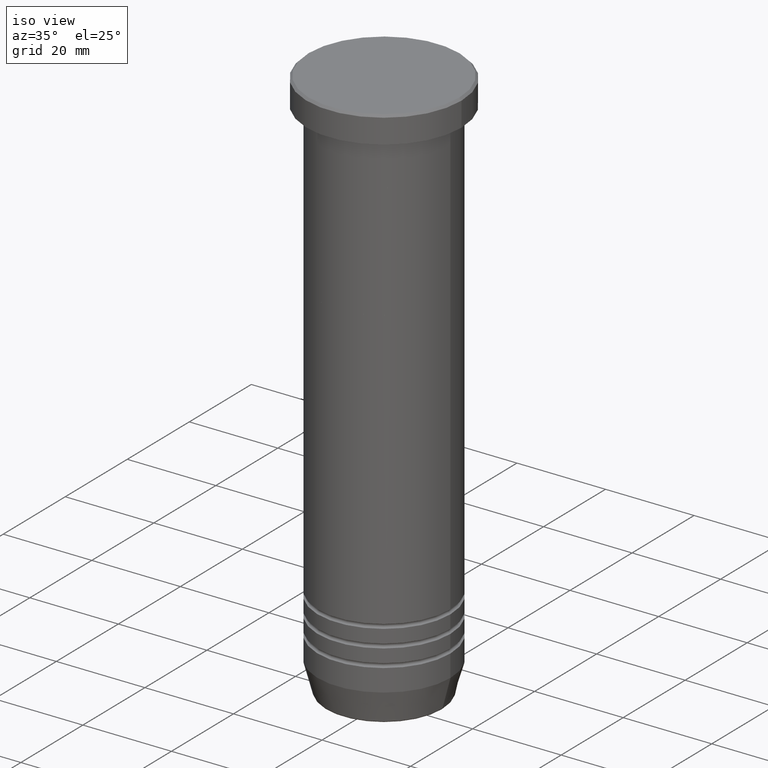
[diagram: clean part render]
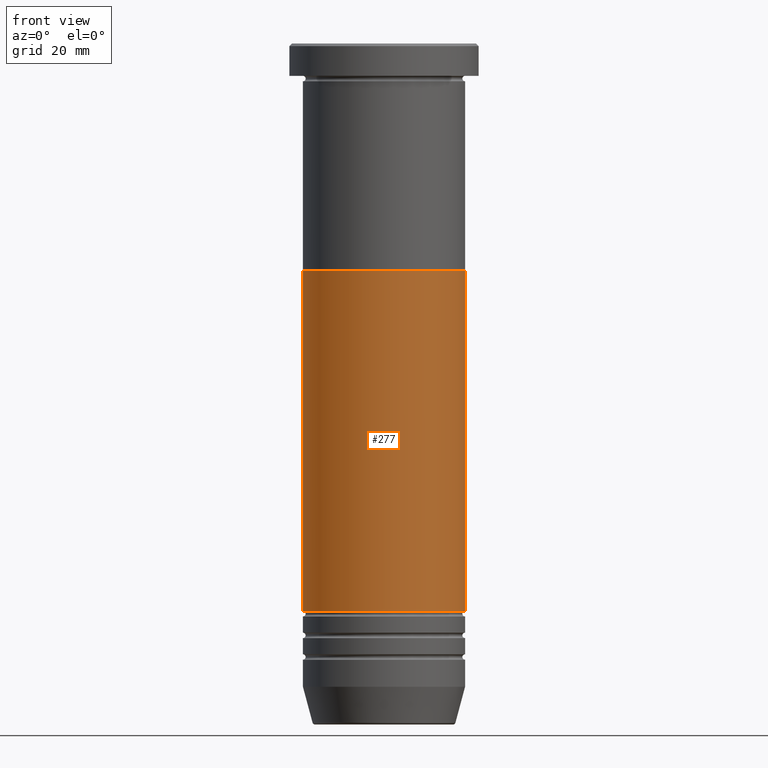
[diagram: tour spotlight — one face highlighted and labeled with its STEP entity id]
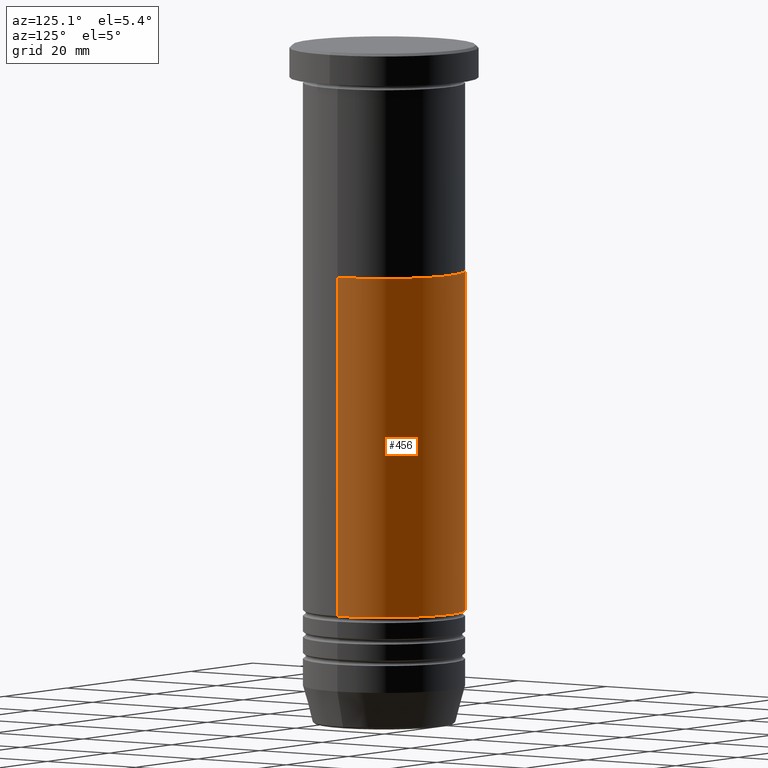
[diagram: tour spotlight — one face highlighted and labeled with its STEP entity id]
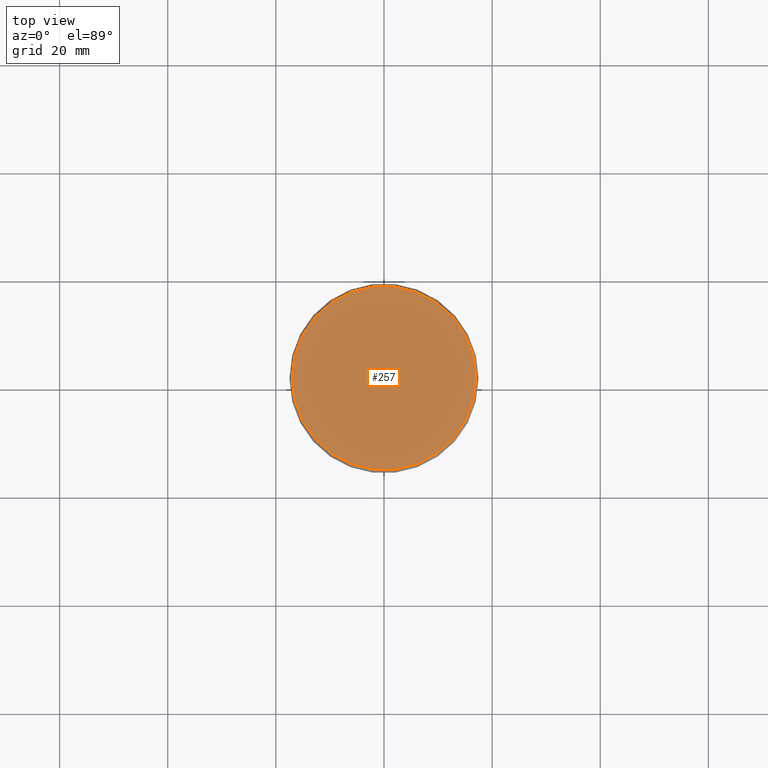
[diagram: tour spotlight — one face highlighted and labeled with its STEP entity id]
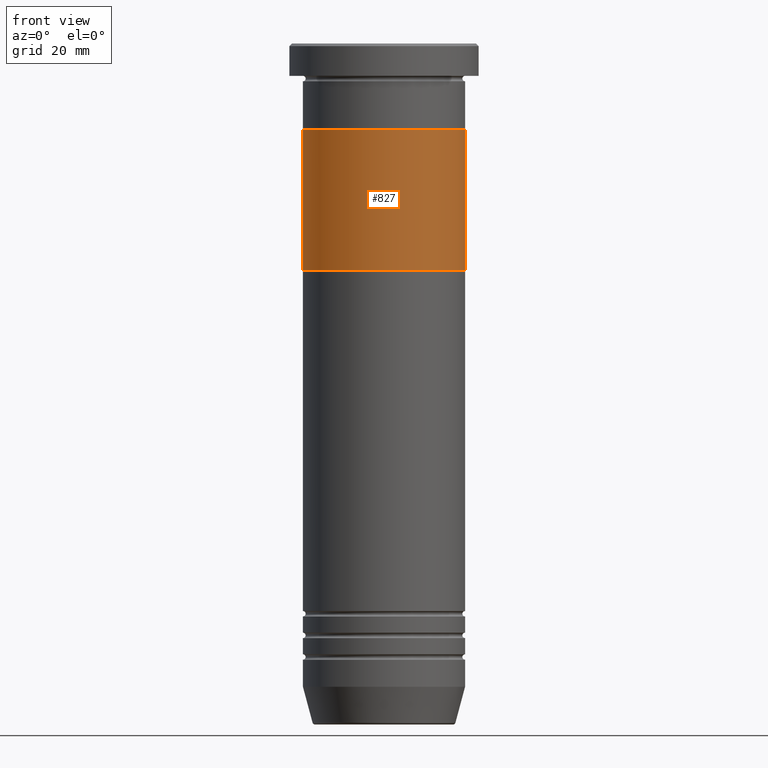
[diagram: tour spotlight — one face highlighted and labeled with its STEP entity id]
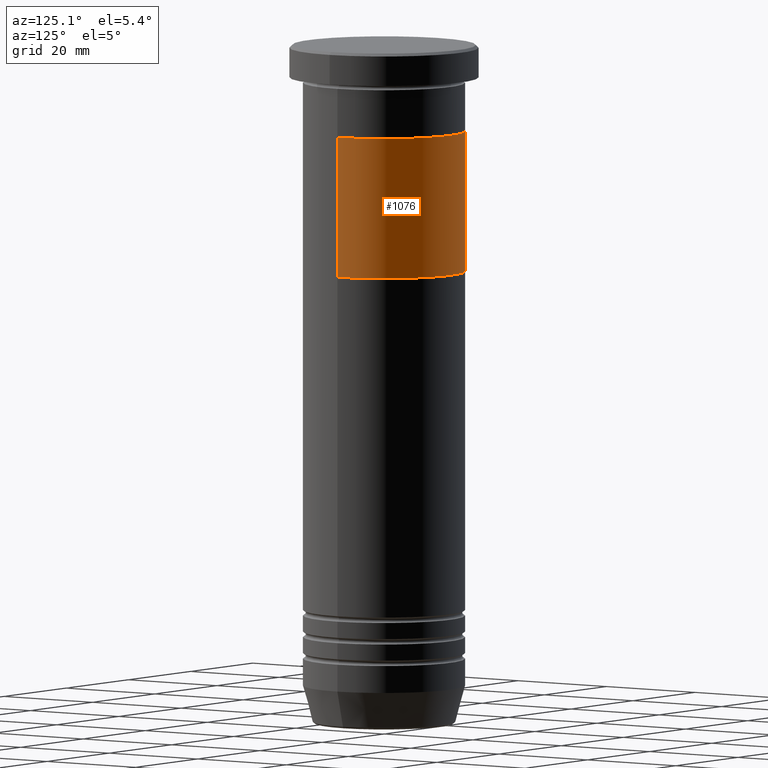
[diagram: tour spotlight — one face highlighted and labeled with its STEP entity id]
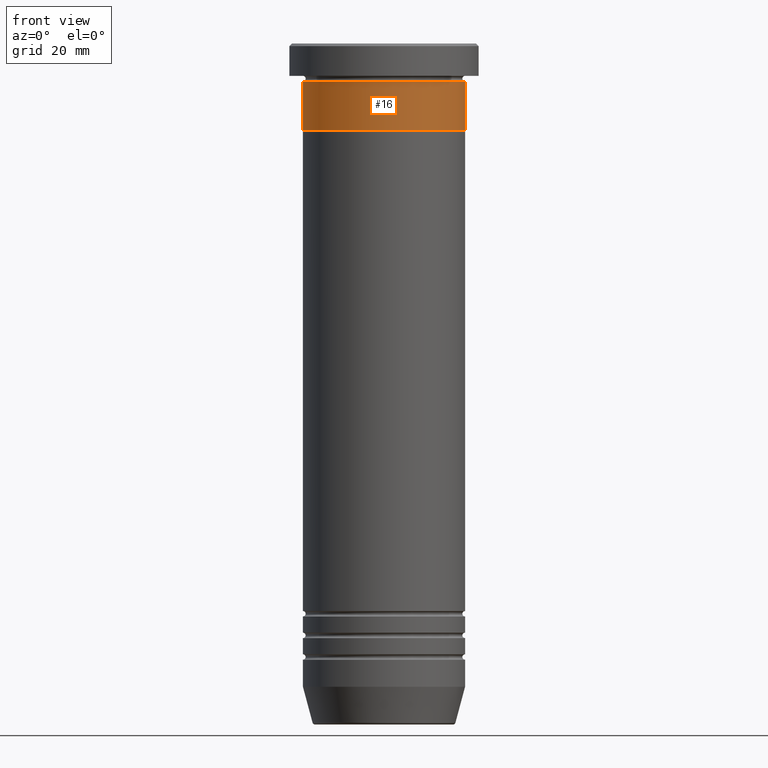
[diagram: tour spotlight — one face highlighted and labeled with its STEP entity id]
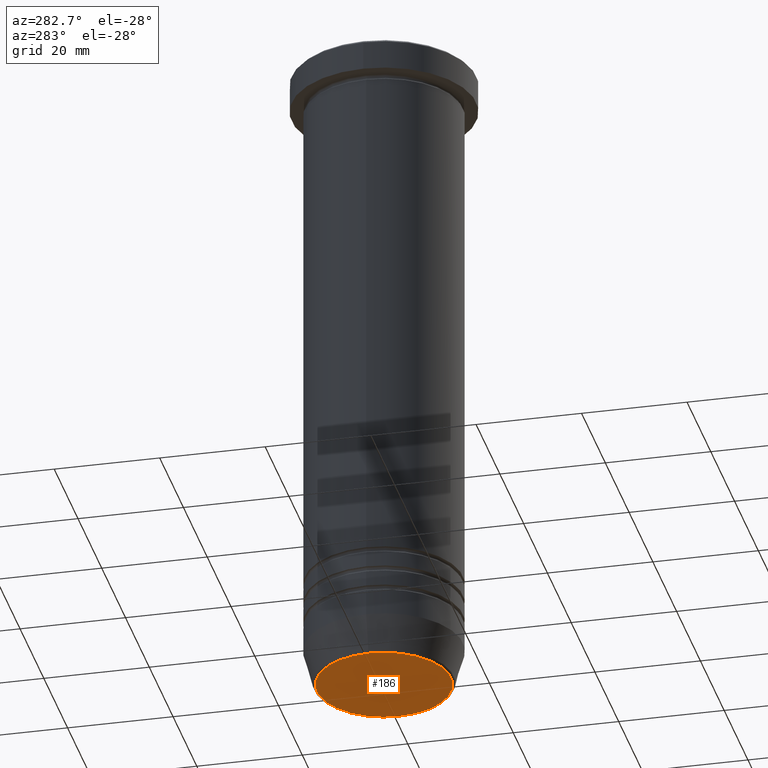
[diagram: tour spotlight — one face highlighted and labeled with its STEP entity id]
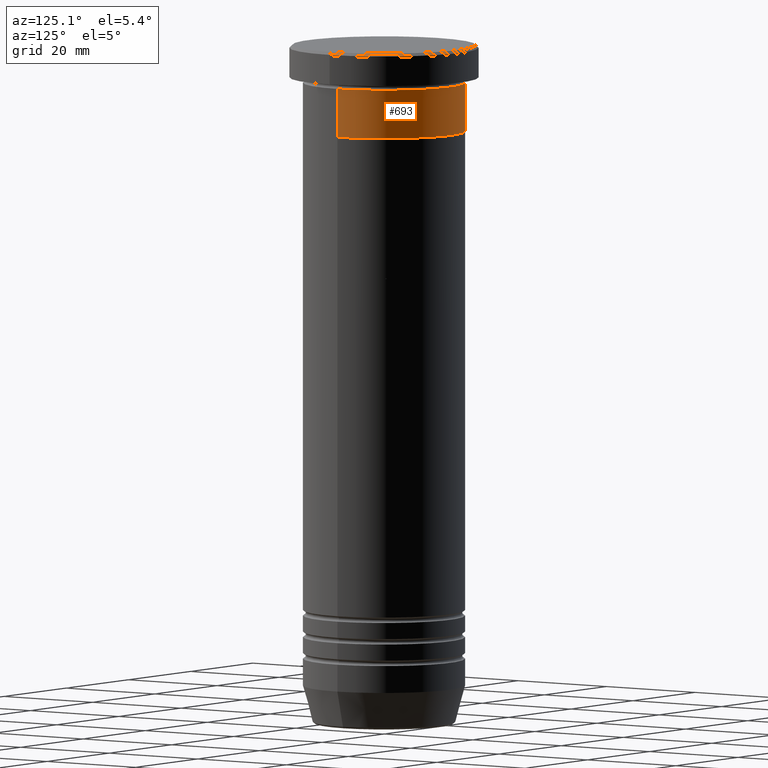
[diagram: tour spotlight — one face highlighted and labeled with its STEP entity id]
A machine part: a face-by-face anatomy tour. The part has 43 B-rep faces; the first image is the clean iso view, then the 8 largest visible faces are spotlighted one at a time (largest first), each with its STEP entity span.

Face 1 — front view, entity #277. In plain terms, the highlighted cylindrical surface (partial cylindrical patch) has radius 15 mm, axis along (-0, -0, 1).
Definition (entity closure, byte-faithful):
#32 = LINE ( 'NONE', #390, #817 ) ;
#91 = DIRECTION ( 'NONE',  ( 1.000000000000000000, 0.000000000000000000, 0.000000000000000000 ) ) ;
#101 = FACE_OUTER_BOUND ( 'NONE', #959, .T. ) ;
#114 = CYLINDRICAL_SURFACE ( 'NONE', #731, 14.99999999999999645 ) ;
#190 = ORIENTED_EDGE ( 'NONE', *, *, #1083, .T. ) ;
#222 = EDGE_CURVE ( 'NONE', #357, #1000, #997, .T. ) ;
#229 = AXIS2_PLACEMENT_3D ( 'NONE', #952, #776, #765 ) ;
#237 = CARTESIAN_POINT ( 'NONE',  ( -14.99999999999999112, 1.836970198721028800E-15, -105.0000000000000142 ) ) ;
#256 = CARTESIAN_POINT ( 'NONE',  ( 15.00000000000000000, 0.000000000000000000, -41.99999999999999289 ) ) ;
#277 = ADVANCED_FACE ( 'NONE', ( #101 ), #114, .T. ) ;
#286 = VECTOR ( 'NONE', #951, 1000.000000000000000 ) ;
#289 = ORIENTED_EDGE ( 'NONE', *, *, #523, .F. ) ;
#357 = VERTEX_POINT ( 'NONE', #851 ) ;
#390 = CARTESIAN_POINT ( 'NONE',  ( 14.99999999999999645, 0.000000000000000000, 0.000000000000000000 ) ) ;
#523 = EDGE_CURVE ( 'NONE', #771, #357, #769, .T. ) ;
#548 = ORIENTED_EDGE ( 'NONE', *, *, #668, .T. ) ;
#633 = DIRECTION ( 'NONE',  ( -0.000000000000000000, -0.000000000000000000, 1.000000000000000000 ) ) ;
#668 = EDGE_CURVE ( 'NONE', #789, #1000, #32, .T. ) ;
#677 = CARTESIAN_POINT ( 'NONE',  ( -14.99999999999999645, 1.836970198721029194E-15, 0.000000000000000000 ) ) ;
#720 = CIRCLE ( 'NONE', #1061, 14.99999999999999112 ) ;
#731 = AXIS2_PLACEMENT_3D ( 'NONE', #820, #633, #91 ) ;
#735 = DIRECTION ( 'NONE',  ( -0.000000000000000000, -0.000000000000000000, 1.000000000000000000 ) ) ;
#765 = DIRECTION ( 'NONE',  ( 1.000000000000000000, 0.000000000000000000, 0.000000000000000000 ) ) ;
#769 = LINE ( 'NONE', #677, #286 ) ;
#771 = VERTEX_POINT ( 'NONE', #237 ) ;
#776 = DIRECTION ( 'NONE',  ( -0.000000000000000000, -0.000000000000000000, 1.000000000000000000 ) ) ;
#789 = VERTEX_POINT ( 'NONE', #935 ) ;
#798 = CARTESIAN_POINT ( 'NONE',  ( 0.000000000000000000, 0.000000000000000000, -105.0000000000000142 ) ) ;
#817 = VECTOR ( 'NONE', #1087, 1000.000000000000000 ) ;
#820 = CARTESIAN_POINT ( 'NONE',  ( 0.000000000000000000, 0.000000000000000000, 0.000000000000000000 ) ) ;
#851 = CARTESIAN_POINT ( 'NONE',  ( -15.00000000000000000, 1.836970198721029589E-15, -41.99999999999999289 ) ) ;
#935 = CARTESIAN_POINT ( 'NONE',  ( 14.99999999999999112, 0.000000000000000000, -105.0000000000000142 ) ) ;
#951 = DIRECTION ( 'NONE',  ( -0.000000000000000000, -0.000000000000000000, 1.000000000000000000 ) ) ;
#952 = CARTESIAN_POINT ( 'NONE',  ( 0.000000000000000000, 0.000000000000000000, -41.99999999999999289 ) ) ;
#959 = EDGE_LOOP ( 'NONE', ( #289, #190, #548, #1044 ) ) ;
#997 = CIRCLE ( 'NONE', #229, 15.00000000000000000 ) ;
#1000 = VERTEX_POINT ( 'NONE', #256 ) ;
#1044 = ORIENTED_EDGE ( 'NONE', *, *, #222, .F. ) ;
#1061 = AXIS2_PLACEMENT_3D ( 'NONE', #798, #735, #1099 ) ;
#1083 = EDGE_CURVE ( 'NONE', #771, #789, #720, .T. ) ;
#1087 = DIRECTION ( 'NONE',  ( -0.000000000000000000, -0.000000000000000000, 1.000000000000000000 ) ) ;
#1099 = DIRECTION ( 'NONE',  ( 1.000000000000000000, 0.000000000000000000, 0.000000000000000000 ) ) ;

Face 2 — auxiliary view, entity #456. In plain terms, the highlighted cylindrical surface (partial cylindrical patch) has radius 15 mm, axis along (-0, -0, 1).
Definition (entity closure, byte-faithful):
#23 = AXIS2_PLACEMENT_3D ( 'NONE', #635, #188, #214 ) ;
#25 = ORIENTED_EDGE ( 'NONE', *, *, #706, .T. ) ;
#32 = LINE ( 'NONE', #390, #817 ) ;
#145 = DIRECTION ( 'NONE',  ( 1.000000000000000000, 0.000000000000000000, 0.000000000000000000 ) ) ;
#148 = DIRECTION ( 'NONE',  ( -0.000000000000000000, -0.000000000000000000, 1.000000000000000000 ) ) ;
#188 = DIRECTION ( 'NONE',  ( -0.000000000000000000, -0.000000000000000000, 1.000000000000000000 ) ) ;
#214 = DIRECTION ( 'NONE',  ( 1.000000000000000000, 0.000000000000000000, 0.000000000000000000 ) ) ;
#237 = CARTESIAN_POINT ( 'NONE',  ( -14.99999999999999112, 1.836970198721028800E-15, -105.0000000000000142 ) ) ;
#256 = CARTESIAN_POINT ( 'NONE',  ( 15.00000000000000000, 0.000000000000000000, -41.99999999999999289 ) ) ;
#286 = VECTOR ( 'NONE', #951, 1000.000000000000000 ) ;
#357 = VERTEX_POINT ( 'NONE', #851 ) ;
#375 = EDGE_LOOP ( 'NONE', ( #25, #1077, #806, #480 ) ) ;
#390 = CARTESIAN_POINT ( 'NONE',  ( 14.99999999999999645, 0.000000000000000000, 0.000000000000000000 ) ) ;
#456 = ADVANCED_FACE ( 'NONE', ( #755 ), #482, .T. ) ;
#480 = ORIENTED_EDGE ( 'NONE', *, *, #668, .F. ) ;
#482 = CYLINDRICAL_SURFACE ( 'NONE', #732, 14.99999999999999645 ) ;
#523 = EDGE_CURVE ( 'NONE', #771, #357, #769, .T. ) ;
#524 = CIRCLE ( 'NONE', #23, 15.00000000000000000 ) ;
#574 = CARTESIAN_POINT ( 'NONE',  ( 0.000000000000000000, 0.000000000000000000, -105.0000000000000142 ) ) ;
#635 = CARTESIAN_POINT ( 'NONE',  ( 0.000000000000000000, 0.000000000000000000, -41.99999999999999289 ) ) ;
#668 = EDGE_CURVE ( 'NONE', #789, #1000, #32, .T. ) ;
#670 = EDGE_CURVE ( 'NONE', #1000, #357, #524, .T. ) ;
#677 = CARTESIAN_POINT ( 'NONE',  ( -14.99999999999999645, 1.836970198721029194E-15, 0.000000000000000000 ) ) ;
#706 = EDGE_CURVE ( 'NONE', #789, #771, #910, .T. ) ;
#732 = AXIS2_PLACEMENT_3D ( 'NONE', #845, #148, #832 ) ;
#755 = FACE_OUTER_BOUND ( 'NONE', #375, .T. ) ;
#760 = AXIS2_PLACEMENT_3D ( 'NONE', #574, #1121, #145 ) ;
#769 = LINE ( 'NONE', #677, #286 ) ;
#771 = VERTEX_POINT ( 'NONE', #237 ) ;
#789 = VERTEX_POINT ( 'NONE', #935 ) ;
#806 = ORIENTED_EDGE ( 'NONE', *, *, #670, .F. ) ;
#817 = VECTOR ( 'NONE', #1087, 1000.000000000000000 ) ;
#832 = DIRECTION ( 'NONE',  ( 1.000000000000000000, 0.000000000000000000, 0.000000000000000000 ) ) ;
#845 = CARTESIAN_POINT ( 'NONE',  ( 0.000000000000000000, 0.000000000000000000, 0.000000000000000000 ) ) ;
#851 = CARTESIAN_POINT ( 'NONE',  ( -15.00000000000000000, 1.836970198721029589E-15, -41.99999999999999289 ) ) ;
#910 = CIRCLE ( 'NONE', #760, 14.99999999999999112 ) ;
#935 = CARTESIAN_POINT ( 'NONE',  ( 14.99999999999999112, 0.000000000000000000, -105.0000000000000142 ) ) ;
#951 = DIRECTION ( 'NONE',  ( -0.000000000000000000, -0.000000000000000000, 1.000000000000000000 ) ) ;
#1000 = VERTEX_POINT ( 'NONE', #256 ) ;
#1077 = ORIENTED_EDGE ( 'NONE', *, *, #523, .T. ) ;
#1087 = DIRECTION ( 'NONE',  ( -0.000000000000000000, -0.000000000000000000, 1.000000000000000000 ) ) ;
#1121 = DIRECTION ( 'NONE',  ( -0.000000000000000000, -0.000000000000000000, 1.000000000000000000 ) ) ;

Face 3 — top view, entity #257. In plain terms, the highlighted planar face has unit normal (0, -0, 1).
Definition (entity closure, byte-faithful):
#106 = CARTESIAN_POINT ( 'NONE',  ( 0.000000000000000000, 0.000000000000000000, 0.000000000000000000 ) ) ;
#199 = ORIENTED_EDGE ( 'NONE', *, *, #737, .T. ) ;
#218 = CARTESIAN_POINT ( 'NONE',  ( 0.000000000000000000, 0.000000000000000000, 0.000000000000000000 ) ) ;
#247 = CARTESIAN_POINT ( 'NONE',  ( 0.000000000000000000, 0.000000000000000000, 0.000000000000000000 ) ) ;
#257 = ADVANCED_FACE ( 'NONE', ( #422 ), #1034, .T. ) ;
#295 = DIRECTION ( 'NONE',  ( 1.000000000000000000, 0.000000000000000000, 0.000000000000000000 ) ) ;
#308 = VERTEX_POINT ( 'NONE', #330 ) ;
#330 = CARTESIAN_POINT ( 'NONE',  ( 17.00000000000000000, 2.112515728529184067E-15, 0.000000000000000000 ) ) ;
#422 = FACE_OUTER_BOUND ( 'NONE', #1057, .T. ) ;
#493 = DIRECTION ( 'NONE',  ( -0.000000000000000000, -0.000000000000000000, 1.000000000000000000 ) ) ;
#532 = AXIS2_PLACEMENT_3D ( 'NONE', #106, #983, #1068 ) ;
#591 = DIRECTION ( 'NONE',  ( 0.000000000000000000, -0.000000000000000000, 1.000000000000000000 ) ) ;
#601 = ORIENTED_EDGE ( 'NONE', *, *, #1104, .T. ) ;
#621 = CIRCLE ( 'NONE', #659, 17.00000000000000000 ) ;
#659 = AXIS2_PLACEMENT_3D ( 'NONE', #218, #493, #667 ) ;
#667 = DIRECTION ( 'NONE',  ( 1.000000000000000000, 0.000000000000000000, 0.000000000000000000 ) ) ;
#737 = EDGE_CURVE ( 'NONE', #308, #942, #621, .T. ) ;
#815 = CIRCLE ( 'NONE', #532, 17.00000000000000000 ) ;
#942 = VERTEX_POINT ( 'NONE', #1138 ) ;
#983 = DIRECTION ( 'NONE',  ( -0.000000000000000000, -0.000000000000000000, 1.000000000000000000 ) ) ;
#1034 = PLANE ( 'NONE',  #1094 ) ;
#1057 = EDGE_LOOP ( 'NONE', ( #601, #199 ) ) ;
#1068 = DIRECTION ( 'NONE',  ( 1.000000000000000000, 0.000000000000000000, 0.000000000000000000 ) ) ;
#1094 = AXIS2_PLACEMENT_3D ( 'NONE', #247, #591, #295 ) ;
#1104 = EDGE_CURVE ( 'NONE', #942, #308, #815, .T. ) ;
#1138 = CARTESIAN_POINT ( 'NONE',  ( -17.00000000000000000, 0.000000000000000000, 0.000000000000000000 ) ) ;

Face 4 — front view, entity #827. In plain terms, the highlighted cylindrical surface (partial cylindrical patch) has radius 15 mm, axis along (-0, -0, 1).
Definition (entity closure, byte-faithful):
#47 = CARTESIAN_POINT ( 'NONE',  ( -15.00000000000000000, 1.836970198721029194E-15, -16.00000000000000000 ) ) ;
#50 = VERTEX_POINT ( 'NONE', #116 ) ;
#54 = EDGE_CURVE ( 'NONE', #50, #1053, #923, .T. ) ;
#60 = EDGE_LOOP ( 'NONE', ( #526, #750, #730, #389 ) ) ;
#94 = CIRCLE ( 'NONE', #193, 15.00000000000000000 ) ;
#111 = EDGE_CURVE ( 'NONE', #575, #50, #1118, .T. ) ;
#116 = CARTESIAN_POINT ( 'NONE',  ( 15.00000000000000000, 0.000000000000000000, -16.00000000000000000 ) ) ;
#163 = FACE_OUTER_BOUND ( 'NONE', #60, .T. ) ;
#193 = AXIS2_PLACEMENT_3D ( 'NONE', #687, #337, #599 ) ;
#223 = CARTESIAN_POINT ( 'NONE',  ( -15.00000000000000000, 1.836970198721029194E-15, -41.99999999999999289 ) ) ;
#238 = EDGE_CURVE ( 'NONE', #575, #689, #94, .T. ) ;
#242 = DIRECTION ( 'NONE',  ( -0.000000000000000000, -0.000000000000000000, 1.000000000000000000 ) ) ;
#281 = DIRECTION ( 'NONE',  ( -1.000000000000000000, 0.000000000000000000, 0.000000000000000000 ) ) ;
#325 = VECTOR ( 'NONE', #823, 1000.000000000000000 ) ;
#337 = DIRECTION ( 'NONE',  ( 0.000000000000000000, 0.000000000000000000, -1.000000000000000000 ) ) ;
#340 = CARTESIAN_POINT ( 'NONE',  ( -15.00000000000000000, 1.836970198721029194E-15, -41.99999999999999289 ) ) ;
#389 = ORIENTED_EDGE ( 'NONE', *, *, #54, .T. ) ;
#423 = CYLINDRICAL_SURFACE ( 'NONE', #573, 15.00000000000000000 ) ;
#526 = ORIENTED_EDGE ( 'NONE', *, *, #878, .F. ) ;
#538 = DIRECTION ( 'NONE',  ( 0.000000000000000000, 0.000000000000000000, -1.000000000000000000 ) ) ;
#573 = AXIS2_PLACEMENT_3D ( 'NONE', #1127, #1008, #922 ) ;
#575 = VERTEX_POINT ( 'NONE', #976 ) ;
#577 = LINE ( 'NONE', #340, #819 ) ;
#599 = DIRECTION ( 'NONE',  ( -1.000000000000000000, 0.000000000000000000, 0.000000000000000000 ) ) ;
#687 = CARTESIAN_POINT ( 'NONE',  ( 0.000000000000000000, 0.000000000000000000, -41.99999999999999289 ) ) ;
#689 = VERTEX_POINT ( 'NONE', #223 ) ;
#730 = ORIENTED_EDGE ( 'NONE', *, *, #111, .T. ) ;
#750 = ORIENTED_EDGE ( 'NONE', *, *, #238, .F. ) ;
#819 = VECTOR ( 'NONE', #242, 1000.000000000000000 ) ;
#823 = DIRECTION ( 'NONE',  ( -0.000000000000000000, -0.000000000000000000, 1.000000000000000000 ) ) ;
#827 = ADVANCED_FACE ( 'NONE', ( #163 ), #423, .T. ) ;
#838 = CARTESIAN_POINT ( 'NONE',  ( 15.00000000000000000, 0.000000000000000000, -41.99999999999999289 ) ) ;
#878 = EDGE_CURVE ( 'NONE', #689, #1053, #577, .T. ) ;
#922 = DIRECTION ( 'NONE',  ( 1.000000000000000000, 0.000000000000000000, 0.000000000000000000 ) ) ;
#923 = CIRCLE ( 'NONE', #1137, 15.00000000000000000 ) ;
#976 = CARTESIAN_POINT ( 'NONE',  ( 15.00000000000000000, 0.000000000000000000, -41.99999999999999289 ) ) ;
#1008 = DIRECTION ( 'NONE',  ( -0.000000000000000000, -0.000000000000000000, 1.000000000000000000 ) ) ;
#1053 = VERTEX_POINT ( 'NONE', #47 ) ;
#1070 = CARTESIAN_POINT ( 'NONE',  ( 0.000000000000000000, 0.000000000000000000, -16.00000000000000000 ) ) ;
#1118 = LINE ( 'NONE', #838, #325 ) ;
#1127 = CARTESIAN_POINT ( 'NONE',  ( 0.000000000000000000, 0.000000000000000000, -41.99999999999999289 ) ) ;
#1137 = AXIS2_PLACEMENT_3D ( 'NONE', #1070, #538, #281 ) ;

Face 5 — auxiliary view, entity #1076. In plain terms, the highlighted cylindrical surface (partial cylindrical patch) has radius 15 mm, axis along (-0, -0, 1).
Definition (entity closure, byte-faithful):
#37 = DIRECTION ( 'NONE',  ( -0.000000000000000000, -0.000000000000000000, 1.000000000000000000 ) ) ;
#47 = CARTESIAN_POINT ( 'NONE',  ( -15.00000000000000000, 1.836970198721029194E-15, -16.00000000000000000 ) ) ;
#50 = VERTEX_POINT ( 'NONE', #116 ) ;
#111 = EDGE_CURVE ( 'NONE', #575, #50, #1118, .T. ) ;
#116 = CARTESIAN_POINT ( 'NONE',  ( 15.00000000000000000, 0.000000000000000000, -16.00000000000000000 ) ) ;
#175 = AXIS2_PLACEMENT_3D ( 'NONE', #814, #37, #704 ) ;
#223 = CARTESIAN_POINT ( 'NONE',  ( -15.00000000000000000, 1.836970198721029194E-15, -41.99999999999999289 ) ) ;
#234 = CARTESIAN_POINT ( 'NONE',  ( 0.000000000000000000, 0.000000000000000000, -41.99999999999999289 ) ) ;
#242 = DIRECTION ( 'NONE',  ( -0.000000000000000000, -0.000000000000000000, 1.000000000000000000 ) ) ;
#284 = EDGE_LOOP ( 'NONE', ( #521, #561, #694, #1030 ) ) ;
#297 = DIRECTION ( 'NONE',  ( -1.000000000000000000, 0.000000000000000000, 0.000000000000000000 ) ) ;
#325 = VECTOR ( 'NONE', #823, 1000.000000000000000 ) ;
#340 = CARTESIAN_POINT ( 'NONE',  ( -15.00000000000000000, 1.836970198721029194E-15, -41.99999999999999289 ) ) ;
#370 = CYLINDRICAL_SURFACE ( 'NONE', #175, 15.00000000000000000 ) ;
#437 = CIRCLE ( 'NONE', #875, 15.00000000000000000 ) ;
#516 = DIRECTION ( 'NONE',  ( 0.000000000000000000, 0.000000000000000000, -1.000000000000000000 ) ) ;
#521 = ORIENTED_EDGE ( 'NONE', *, *, #871, .F. ) ;
#561 = ORIENTED_EDGE ( 'NONE', *, *, #878, .T. ) ;
#575 = VERTEX_POINT ( 'NONE', #976 ) ;
#577 = LINE ( 'NONE', #340, #819 ) ;
#618 = FACE_OUTER_BOUND ( 'NONE', #284, .T. ) ;
#669 = EDGE_CURVE ( 'NONE', #1053, #50, #1017, .T. ) ;
#689 = VERTEX_POINT ( 'NONE', #223 ) ;
#694 = ORIENTED_EDGE ( 'NONE', *, *, #669, .T. ) ;
#704 = DIRECTION ( 'NONE',  ( 1.000000000000000000, 0.000000000000000000, 0.000000000000000000 ) ) ;
#814 = CARTESIAN_POINT ( 'NONE',  ( 0.000000000000000000, 0.000000000000000000, -41.99999999999999289 ) ) ;
#819 = VECTOR ( 'NONE', #242, 1000.000000000000000 ) ;
#823 = DIRECTION ( 'NONE',  ( -0.000000000000000000, -0.000000000000000000, 1.000000000000000000 ) ) ;
#838 = CARTESIAN_POINT ( 'NONE',  ( 15.00000000000000000, 0.000000000000000000, -41.99999999999999289 ) ) ;
#871 = EDGE_CURVE ( 'NONE', #689, #575, #437, .T. ) ;
#875 = AXIS2_PLACEMENT_3D ( 'NONE', #234, #516, #949 ) ;
#878 = EDGE_CURVE ( 'NONE', #689, #1053, #577, .T. ) ;
#949 = DIRECTION ( 'NONE',  ( -1.000000000000000000, 0.000000000000000000, 0.000000000000000000 ) ) ;
#976 = CARTESIAN_POINT ( 'NONE',  ( 15.00000000000000000, 0.000000000000000000, -41.99999999999999289 ) ) ;
#982 = CARTESIAN_POINT ( 'NONE',  ( 0.000000000000000000, 0.000000000000000000, -16.00000000000000000 ) ) ;
#1017 = CIRCLE ( 'NONE', #1095, 15.00000000000000000 ) ;
#1030 = ORIENTED_EDGE ( 'NONE', *, *, #111, .F. ) ;
#1053 = VERTEX_POINT ( 'NONE', #47 ) ;
#1076 = ADVANCED_FACE ( 'NONE', ( #618 ), #370, .T. ) ;
#1093 = DIRECTION ( 'NONE',  ( 0.000000000000000000, 0.000000000000000000, -1.000000000000000000 ) ) ;
#1095 = AXIS2_PLACEMENT_3D ( 'NONE', #982, #1093, #297 ) ;
#1118 = LINE ( 'NONE', #838, #325 ) ;

Face 6 — front view, entity #16. In plain terms, the highlighted cylindrical surface (partial cylindrical patch) has radius 15 mm, axis along (-0, -0, 1).
Definition (entity closure, byte-faithful):
#7 = CYLINDRICAL_SURFACE ( 'NONE', #249, 15.00000000000000000 ) ;
#16 = ADVANCED_FACE ( 'NONE', ( #980 ), #7, .T. ) ;
#20 = VERTEX_POINT ( 'NONE', #541 ) ;
#44 = ORIENTED_EDGE ( 'NONE', *, *, #738, .T. ) ;
#48 = DIRECTION ( 'NONE',  ( -0.000000000000000000, -0.000000000000000000, 1.000000000000000000 ) ) ;
#97 = ORIENTED_EDGE ( 'NONE', *, *, #550, .F. ) ;
#109 = CARTESIAN_POINT ( 'NONE',  ( 0.000000000000000000, 0.000000000000000000, -6.999999999999999112 ) ) ;
#120 = CIRCLE ( 'NONE', #452, 15.00000000000000000 ) ;
#157 = DIRECTION ( 'NONE',  ( -0.000000000000000000, -0.000000000000000000, 1.000000000000000000 ) ) ;
#181 = VERTEX_POINT ( 'NONE', #603 ) ;
#216 = CARTESIAN_POINT ( 'NONE',  ( -15.00000000000000000, 1.836970198721029589E-15, -16.00000000000000000 ) ) ;
#240 = ORIENTED_EDGE ( 'NONE', *, *, #719, .T. ) ;
#249 = AXIS2_PLACEMENT_3D ( 'NONE', #385, #808, #904 ) ;
#319 = CARTESIAN_POINT ( 'NONE',  ( -15.00000000000000000, 1.836970198721029589E-15, 0.000000000000000000 ) ) ;
#334 = DIRECTION ( 'NONE',  ( 1.000000000000000000, 0.000000000000000000, 0.000000000000000000 ) ) ;
#343 = VERTEX_POINT ( 'NONE', #216 ) ;
#385 = CARTESIAN_POINT ( 'NONE',  ( 0.000000000000000000, 0.000000000000000000, 0.000000000000000000 ) ) ;
#393 = DIRECTION ( 'NONE',  ( -0.000000000000000000, -0.000000000000000000, 1.000000000000000000 ) ) ;
#451 = AXIS2_PLACEMENT_3D ( 'NONE', #109, #393, #809 ) ;
#452 = AXIS2_PLACEMENT_3D ( 'NONE', #826, #48, #334 ) ;
#534 = ORIENTED_EDGE ( 'NONE', *, *, #869, .F. ) ;
#541 = CARTESIAN_POINT ( 'NONE',  ( -15.00000000000000000, 1.836970198721029589E-15, -6.999999999999999112 ) ) ;
#550 = EDGE_CURVE ( 'NONE', #20, #181, #984, .T. ) ;
#582 = LINE ( 'NONE', #839, #1065 ) ;
#603 = CARTESIAN_POINT ( 'NONE',  ( 15.00000000000000000, 0.000000000000000000, -6.999999999999999112 ) ) ;
#699 = VECTOR ( 'NONE', #157, 1000.000000000000000 ) ;
#719 = EDGE_CURVE ( 'NONE', #343, #874, #120, .T. ) ;
#738 = EDGE_CURVE ( 'NONE', #874, #181, #582, .T. ) ;
#749 = DIRECTION ( 'NONE',  ( -0.000000000000000000, -0.000000000000000000, 1.000000000000000000 ) ) ;
#808 = DIRECTION ( 'NONE',  ( -0.000000000000000000, -0.000000000000000000, 1.000000000000000000 ) ) ;
#809 = DIRECTION ( 'NONE',  ( 1.000000000000000000, 0.000000000000000000, 0.000000000000000000 ) ) ;
#826 = CARTESIAN_POINT ( 'NONE',  ( 0.000000000000000000, 0.000000000000000000, -16.00000000000000000 ) ) ;
#839 = CARTESIAN_POINT ( 'NONE',  ( 15.00000000000000000, 0.000000000000000000, 0.000000000000000000 ) ) ;
#869 = EDGE_CURVE ( 'NONE', #343, #20, #1105, .T. ) ;
#874 = VERTEX_POINT ( 'NONE', #938 ) ;
#904 = DIRECTION ( 'NONE',  ( 1.000000000000000000, 0.000000000000000000, 0.000000000000000000 ) ) ;
#938 = CARTESIAN_POINT ( 'NONE',  ( 15.00000000000000000, 0.000000000000000000, -16.00000000000000000 ) ) ;
#980 = FACE_OUTER_BOUND ( 'NONE', #1009, .T. ) ;
#984 = CIRCLE ( 'NONE', #451, 15.00000000000000000 ) ;
#1009 = EDGE_LOOP ( 'NONE', ( #534, #240, #44, #97 ) ) ;
#1065 = VECTOR ( 'NONE', #749, 1000.000000000000000 ) ;
#1105 = LINE ( 'NONE', #319, #699 ) ;

Face 7 — auxiliary view, entity #186. In plain terms, the highlighted planar face has unit normal (0, -0, 1).
Definition (entity closure, byte-faithful):
#67 = DIRECTION ( 'NONE',  ( 0.000000000000000000, 0.000000000000000000, -1.000000000000000000 ) ) ;
#68 = AXIS2_PLACEMENT_3D ( 'NONE', #567, #67, #331 ) ;
#113 = ORIENTED_EDGE ( 'NONE', *, *, #843, .T. ) ;
#144 = DIRECTION ( 'NONE',  ( 0.000000000000000000, 0.000000000000000000, -1.000000000000000000 ) ) ;
#179 = DIRECTION ( 'NONE',  ( 1.000000000000000000, 0.000000000000000000, 0.000000000000000000 ) ) ;
#186 = ADVANCED_FACE ( 'NONE', ( #960 ), #1133, .F. ) ;
#259 = CARTESIAN_POINT ( 'NONE',  ( 0.000000000000000000, 8.143901214329899974E-15, -126.0000000000000000 ) ) ;
#331 = DIRECTION ( 'NONE',  ( 1.000000000000000000, 0.000000000000000000, 0.000000000000000000 ) ) ;
#484 = DIRECTION ( 'NONE',  ( 1.000000000000000000, 0.000000000000000000, 0.000000000000000000 ) ) ;
#567 = CARTESIAN_POINT ( 'NONE',  ( 0.000000000000000000, 0.000000000000000000, -126.0000000000000000 ) ) ;
#636 = EDGE_LOOP ( 'NONE', ( #1046, #113 ) ) ;
#696 = CIRCLE ( 'NONE', #715, 12.74069215899266005 ) ;
#715 = AXIS2_PLACEMENT_3D ( 'NONE', #991, #144, #484 ) ;
#718 = CIRCLE ( 'NONE', #68, 12.74069215899266005 ) ;
#743 = CARTESIAN_POINT ( 'NONE',  ( -12.74069215899266005, 1.589857736427681429E-15, -126.0000000000000000 ) ) ;
#753 = AXIS2_PLACEMENT_3D ( 'NONE', #259, #1125, #179 ) ;
#761 = CARTESIAN_POINT ( 'NONE',  ( 12.74069215899266005, 0.000000000000000000, -126.0000000000000000 ) ) ;
#824 = VERTEX_POINT ( 'NONE', #761 ) ;
#843 = EDGE_CURVE ( 'NONE', #1120, #824, #718, .T. ) ;
#960 = FACE_OUTER_BOUND ( 'NONE', #636, .T. ) ;
#991 = CARTESIAN_POINT ( 'NONE',  ( 0.000000000000000000, 0.000000000000000000, -126.0000000000000000 ) ) ;
#1046 = ORIENTED_EDGE ( 'NONE', *, *, #1056, .T. ) ;
#1056 = EDGE_CURVE ( 'NONE', #824, #1120, #696, .T. ) ;
#1120 = VERTEX_POINT ( 'NONE', #743 ) ;
#1125 = DIRECTION ( 'NONE',  ( 0.000000000000000000, -0.000000000000000000, 1.000000000000000000 ) ) ;
#1133 = PLANE ( 'NONE',  #753 ) ;

Face 8 — auxiliary view, entity #693. In plain terms, the highlighted cylindrical surface (partial cylindrical patch) has radius 15 mm, axis along (-0, -0, 1).
Definition (entity closure, byte-faithful):
#3 = AXIS2_PLACEMENT_3D ( 'NONE', #187, #371, #993 ) ;
#20 = VERTEX_POINT ( 'NONE', #541 ) ;
#33 = ORIENTED_EDGE ( 'NONE', *, *, #738, .F. ) ;
#41 = EDGE_CURVE ( 'NONE', #874, #343, #887, .T. ) ;
#53 = DIRECTION ( 'NONE',  ( -0.000000000000000000, -0.000000000000000000, 1.000000000000000000 ) ) ;
#130 = DIRECTION ( 'NONE',  ( 1.000000000000000000, 0.000000000000000000, 0.000000000000000000 ) ) ;
#146 = EDGE_LOOP ( 'NONE', ( #597, #840, #475, #33 ) ) ;
#157 = DIRECTION ( 'NONE',  ( -0.000000000000000000, -0.000000000000000000, 1.000000000000000000 ) ) ;
#181 = VERTEX_POINT ( 'NONE', #603 ) ;
#187 = CARTESIAN_POINT ( 'NONE',  ( 0.000000000000000000, 0.000000000000000000, -16.00000000000000000 ) ) ;
#200 = DIRECTION ( 'NONE',  ( -0.000000000000000000, -0.000000000000000000, 1.000000000000000000 ) ) ;
#216 = CARTESIAN_POINT ( 'NONE',  ( -15.00000000000000000, 1.836970198721029589E-15, -16.00000000000000000 ) ) ;
#230 = FACE_OUTER_BOUND ( 'NONE', #146, .T. ) ;
#252 = AXIS2_PLACEMENT_3D ( 'NONE', #1100, #53, #130 ) ;
#276 = EDGE_CURVE ( 'NONE', #181, #20, #481, .T. ) ;
#319 = CARTESIAN_POINT ( 'NONE',  ( -15.00000000000000000, 1.836970198721029589E-15, 0.000000000000000000 ) ) ;
#343 = VERTEX_POINT ( 'NONE', #216 ) ;
#371 = DIRECTION ( 'NONE',  ( -0.000000000000000000, -0.000000000000000000, 1.000000000000000000 ) ) ;
#475 = ORIENTED_EDGE ( 'NONE', *, *, #276, .F. ) ;
#481 = CIRCLE ( 'NONE', #1111, 15.00000000000000000 ) ;
#541 = CARTESIAN_POINT ( 'NONE',  ( -15.00000000000000000, 1.836970198721029589E-15, -6.999999999999999112 ) ) ;
#582 = LINE ( 'NONE', #839, #1065 ) ;
#597 = ORIENTED_EDGE ( 'NONE', *, *, #41, .T. ) ;
#603 = CARTESIAN_POINT ( 'NONE',  ( 15.00000000000000000, 0.000000000000000000, -6.999999999999999112 ) ) ;
#693 = ADVANCED_FACE ( 'NONE', ( #230 ), #1024, .T. ) ;
#699 = VECTOR ( 'NONE', #157, 1000.000000000000000 ) ;
#738 = EDGE_CURVE ( 'NONE', #874, #181, #582, .T. ) ;
#749 = DIRECTION ( 'NONE',  ( -0.000000000000000000, -0.000000000000000000, 1.000000000000000000 ) ) ;
#839 = CARTESIAN_POINT ( 'NONE',  ( 15.00000000000000000, 0.000000000000000000, 0.000000000000000000 ) ) ;
#840 = ORIENTED_EDGE ( 'NONE', *, *, #869, .T. ) ;
#869 = EDGE_CURVE ( 'NONE', #343, #20, #1105, .T. ) ;
#874 = VERTEX_POINT ( 'NONE', #938 ) ;
#882 = CARTESIAN_POINT ( 'NONE',  ( 0.000000000000000000, 0.000000000000000000, -6.999999999999999112 ) ) ;
#887 = CIRCLE ( 'NONE', #3, 15.00000000000000000 ) ;
#902 = DIRECTION ( 'NONE',  ( 1.000000000000000000, 0.000000000000000000, 0.000000000000000000 ) ) ;
#938 = CARTESIAN_POINT ( 'NONE',  ( 15.00000000000000000, 0.000000000000000000, -16.00000000000000000 ) ) ;
#993 = DIRECTION ( 'NONE',  ( 1.000000000000000000, 0.000000000000000000, 0.000000000000000000 ) ) ;
#1024 = CYLINDRICAL_SURFACE ( 'NONE', #252, 15.00000000000000000 ) ;
#1065 = VECTOR ( 'NONE', #749, 1000.000000000000000 ) ;
#1100 = CARTESIAN_POINT ( 'NONE',  ( 0.000000000000000000, 0.000000000000000000, 0.000000000000000000 ) ) ;
#1105 = LINE ( 'NONE', #319, #699 ) ;
#1111 = AXIS2_PLACEMENT_3D ( 'NONE', #882, #200, #902 ) ;